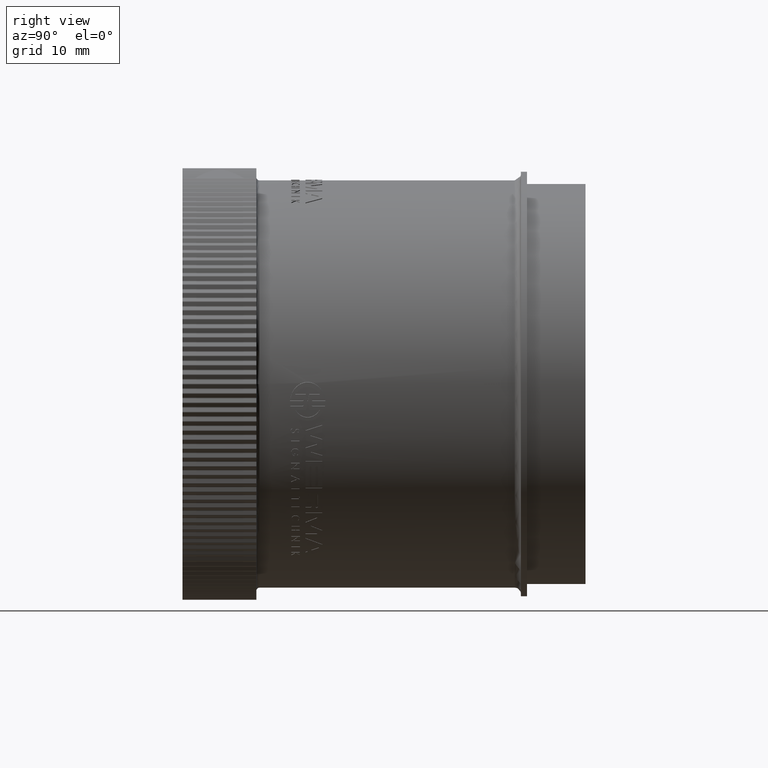
[diagram: clean part render]
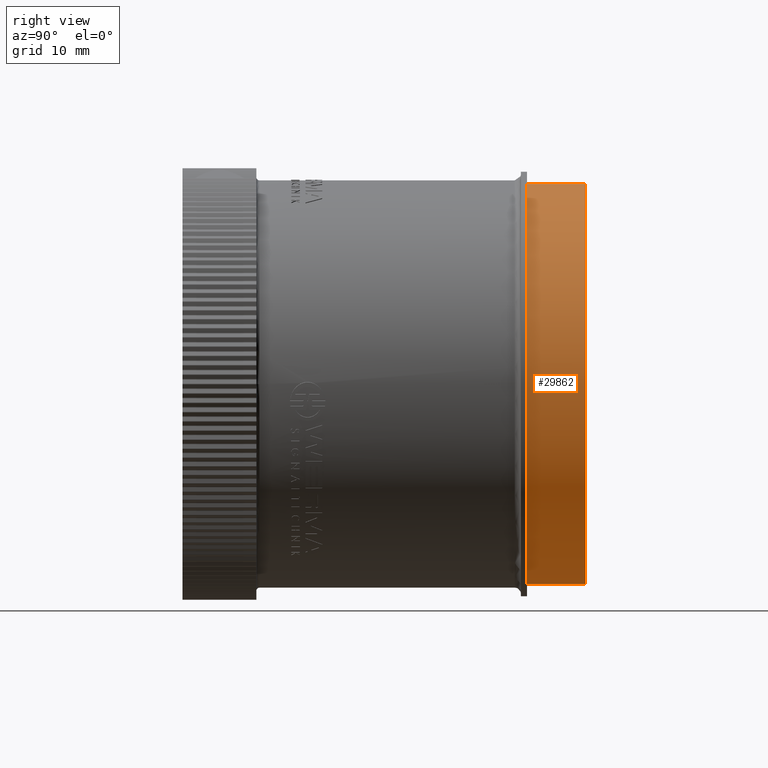
[diagram: same view with one face highlighted and labeled with its STEP entity id]
A machine part, right view. The second image highlights one B-rep face of the part: STEP entity #29862.
In plain terms, the highlighted cylindrical surface (partial cylindrical patch) has radius 32.5 mm, axis along (0, -1, 0).
Its self-contained STEP definition (entity closure, byte-faithful):
#456 = VERTEX_POINT ( 'NONE', #17857 ) ;
#1090 = DIRECTION ( 'NONE',  ( 0.0000000000000000000, 0.0000000000000000000, -1.000000000000000000 ) ) ;
#4892 = CARTESIAN_POINT ( 'NONE',  ( 1.566969329617676700E-016, 2.391732283464567600, 1.279527559055118300 ) ) ;
#5386 = AXIS2_PLACEMENT_3D ( 'NONE', #39561, #16362, #43451 ) ;
#6880 = EDGE_CURVE ( 'NONE', #43678, #456, #33868, .T. ) ;
#7507 = ORIENTED_EDGE ( 'NONE', *, *, #6880, .T. ) ;
#11594 = LINE ( 'NONE', #13506, #20696 ) ;
#11864 = CIRCLE ( 'NONE', #5386, 1.279527559055118300 ) ;
#11930 = CIRCLE ( 'NONE', #34242, 1.279527559055118300 ) ;
#13242 = VECTOR ( 'NONE', #24397, 39.37007874015748100 ) ;
#13506 = CARTESIAN_POINT ( 'NONE',  ( 0.0000000000000000000, 2.391732283464567600, -1.279527559055118300 ) ) ;
#16162 = EDGE_LOOP ( 'NONE', ( #22083, #7507, #41678, #32677 ) ) ;
#16362 = DIRECTION ( 'NONE',  ( 0.0000000000000000000, -1.000000000000000000, 0.0000000000000000000 ) ) ;
#17857 = CARTESIAN_POINT ( 'NONE',  ( 1.566969329617676700E-016, 2.204724409448819400, 1.279527559055118300 ) ) ;
#20696 = VECTOR ( 'NONE', #40432, 39.37007874015748100 ) ;
#21767 = VERTEX_POINT ( 'NONE', #35823 ) ;
#22083 = ORIENTED_EDGE ( 'NONE', *, *, #48438, .T. ) ;
#24383 = DIRECTION ( 'NONE',  ( 0.0000000000000000000, -1.000000000000000000, 0.0000000000000000000 ) ) ;
#24397 = DIRECTION ( 'NONE',  ( 0.0000000000000000000, -1.000000000000000000, 0.0000000000000000000 ) ) ;
#26686 = DIRECTION ( 'NONE',  ( 0.0000000000000000000, -1.000000000000000000, 0.0000000000000000000 ) ) ;
#29862 = ADVANCED_FACE ( 'NONE', ( #33658 ), #31221, .T. ) ;
#30393 = DIRECTION ( 'NONE',  ( 0.0000000000000000000, 0.0000000000000000000, -1.000000000000000000 ) ) ;
#31221 = CYLINDRICAL_SURFACE ( 'NONE', #33681, 1.279527559055118300 ) ;
#32677 = ORIENTED_EDGE ( 'NONE', *, *, #45189, .F. ) ;
#33658 = FACE_OUTER_BOUND ( 'NONE', #16162, .T. ) ;
#33681 = AXIS2_PLACEMENT_3D ( 'NONE', #42090, #26686, #30393 ) ;
#33868 = LINE ( 'NONE', #4892, #13242 ) ;
#34242 = AXIS2_PLACEMENT_3D ( 'NONE', #47599, #24383, #1090 ) ;
#35823 = CARTESIAN_POINT ( 'NONE',  ( 0.0000000000000000000, 2.578740157480315300, -1.279527559055118300 ) ) ;
#39005 = EDGE_CURVE ( 'NONE', #42662, #456, #11864, .T. ) ;
#39561 = CARTESIAN_POINT ( 'NONE',  ( 0.0000000000000000000, 2.204724409448819400, 0.0000000000000000000 ) ) ;
#40432 = DIRECTION ( 'NONE',  ( 0.0000000000000000000, -1.000000000000000000, 0.0000000000000000000 ) ) ;
#41678 = ORIENTED_EDGE ( 'NONE', *, *, #39005, .F. ) ;
#42090 = CARTESIAN_POINT ( 'NONE',  ( 0.0000000000000000000, 2.391732283464567600, 0.0000000000000000000 ) ) ;
#42662 = VERTEX_POINT ( 'NONE', #47259 ) ;
#43451 = DIRECTION ( 'NONE',  ( 0.0000000000000000000, 0.0000000000000000000, -1.000000000000000000 ) ) ;
#43678 = VERTEX_POINT ( 'NONE', #47467 ) ;
#45189 = EDGE_CURVE ( 'NONE', #21767, #42662, #11594, .T. ) ;
#47259 = CARTESIAN_POINT ( 'NONE',  ( 0.0000000000000000000, 2.204724409448819400, -1.279527559055118300 ) ) ;
#47467 = CARTESIAN_POINT ( 'NONE',  ( 1.566969329617676700E-016, 2.578740157480315300, 1.279527559055118300 ) ) ;
#47599 = CARTESIAN_POINT ( 'NONE',  ( 0.0000000000000000000, 2.578740157480315300, 0.0000000000000000000 ) ) ;
#48438 = EDGE_CURVE ( 'NONE', #21767, #43678, #11930, .T. ) ;